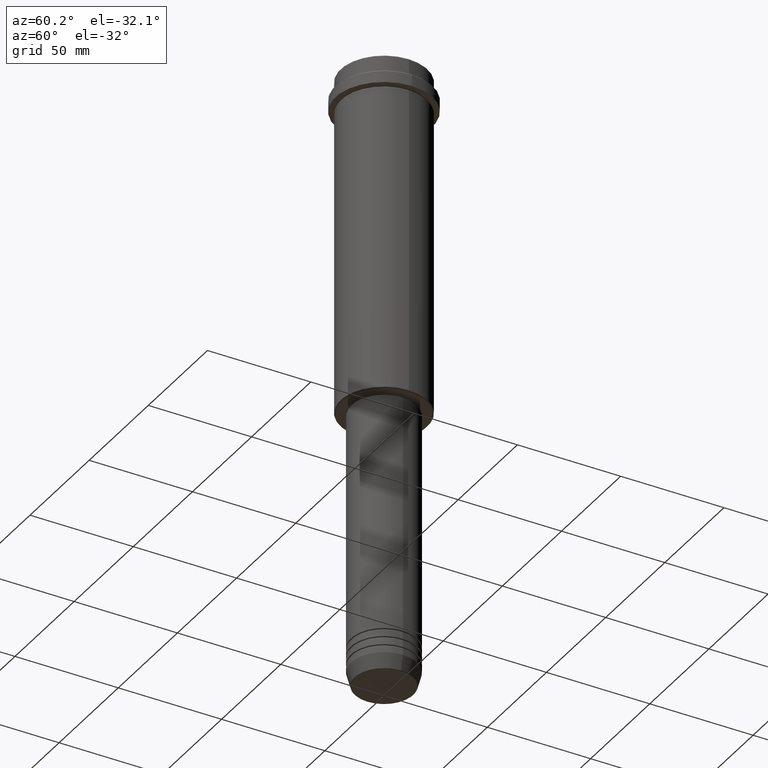
[diagram: clean part render]
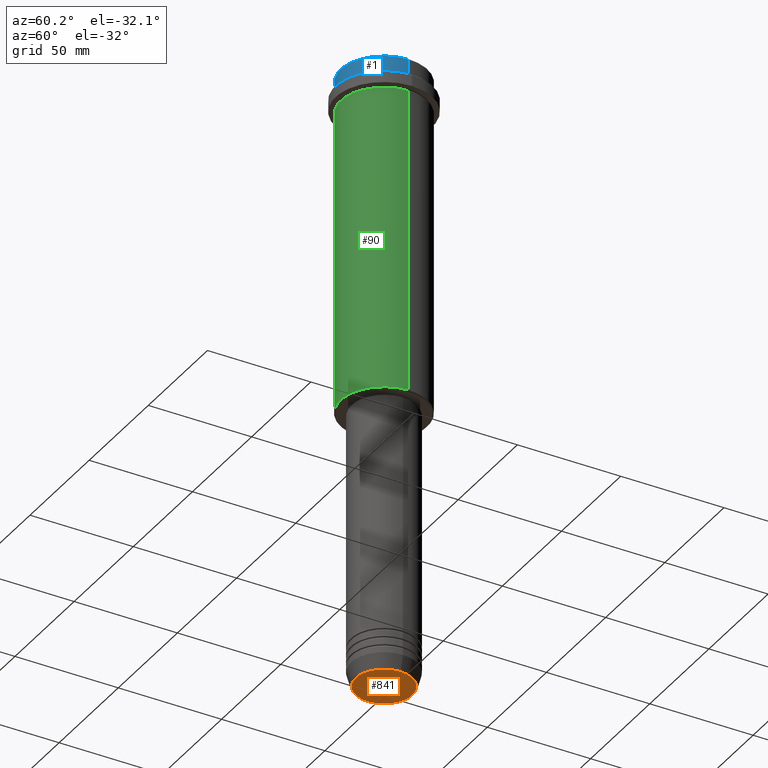
[diagram: same view with three faces highlighted in distinct colors, each labeled with its STEP entity id]
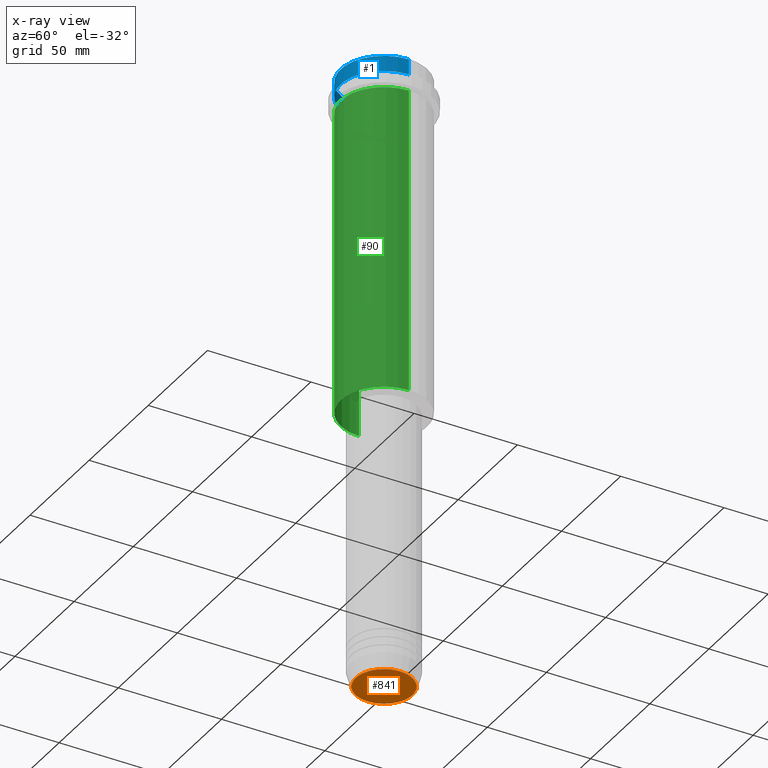
[diagram: x-ray of the same camera — body ghosted, the three highlighted faces saturated]
A machine part, auxiliary view with three faces highlighted in distinct colors.
The next image is the same camera in x-ray (body ghosted, the three faces saturated) — at least one of them is partly hidden behind the body in this view.
Their STEP definitions:

[orange] entity #841 — the highlighted planar face has unit normal (0, -0, 1).
#72 = VERTEX_POINT ( 'NONE', #1034 ) ;
#99 = CARTESIAN_POINT ( 'NONE',  ( -13.74069215899265828, 1.712322416342415986E-15, -300.0000000000000568 ) ) ;
#178 = CARTESIAN_POINT ( 'NONE',  ( 0.000000000000000000, 0.000000000000000000, -300.0000000000000568 ) ) ;
#287 = DIRECTION ( 'NONE',  ( 1.000000000000000000, 0.000000000000000000, 0.000000000000000000 ) ) ;
#388 = CARTESIAN_POINT ( 'NONE',  ( 0.000000000000000000, 0.000000000000000000, -300.0000000000000568 ) ) ;
#408 = EDGE_LOOP ( 'NONE', ( #669, #1095 ) ) ;
#503 = DIRECTION ( 'NONE',  ( 1.000000000000000000, 0.000000000000000000, 0.000000000000000000 ) ) ;
#518 = CIRCLE ( 'NONE', #1318, 13.74069215899265828 ) ;
#527 = DIRECTION ( 'NONE',  ( 0.000000000000000000, 0.000000000000000000, -1.000000000000000000 ) ) ;
#669 = ORIENTED_EDGE ( 'NONE', *, *, #1181, .T. ) ;
#681 = AXIS2_PLACEMENT_3D ( 'NONE', #178, #722, #1258 ) ;
#722 = DIRECTION ( 'NONE',  ( 0.000000000000000000, 0.000000000000000000, -1.000000000000000000 ) ) ;
#759 = CARTESIAN_POINT ( 'NONE',  ( 0.000000000000000000, 0.000000000000000000, -300.0000000000000568 ) ) ;
#841 = ADVANCED_FACE ( 'NONE', ( #1262 ), #1071, .F. ) ;
#1025 = CIRCLE ( 'NONE', #681, 13.74069215899265828 ) ;
#1034 = CARTESIAN_POINT ( 'NONE',  ( 13.74069215899265828, 0.000000000000000000, -300.0000000000000568 ) ) ;
#1071 = PLANE ( 'NONE',  #1209 ) ;
#1095 = ORIENTED_EDGE ( 'NONE', *, *, #1282, .T. ) ;
#1181 = EDGE_CURVE ( 'NONE', #72, #1355, #1025, .T. ) ;
#1209 = AXIS2_PLACEMENT_3D ( 'NONE', #388, #1286, #503 ) ;
#1258 = DIRECTION ( 'NONE',  ( 1.000000000000000000, 0.000000000000000000, 0.000000000000000000 ) ) ;
#1262 = FACE_OUTER_BOUND ( 'NONE', #408, .T. ) ;
#1282 = EDGE_CURVE ( 'NONE', #1355, #72, #518, .T. ) ;
#1286 = DIRECTION ( 'NONE',  ( 0.000000000000000000, -0.000000000000000000, 1.000000000000000000 ) ) ;
#1318 = AXIS2_PLACEMENT_3D ( 'NONE', #759, #527, #287 ) ;
#1355 = VERTEX_POINT ( 'NONE', #99 ) ;

[blue] entity #1 — the highlighted cylindrical surface (partial cylindrical patch) has radius 21 mm, axis along (-0, -0, 1).
#1 = ADVANCED_FACE ( 'NONE', ( #200 ), #777, .T. ) ;
#3 = LINE ( 'NONE', #413, #647 ) ;
#25 = DIRECTION ( 'NONE',  ( 1.000000000000000000, 0.000000000000000000, 0.000000000000000000 ) ) ;
#36 = VECTOR ( 'NONE', #1172, 1000.000000000000000 ) ;
#65 = CARTESIAN_POINT ( 'NONE',  ( 20.99999999999999645, 0.000000000000000000, -7.999999999999998224 ) ) ;
#76 = EDGE_CURVE ( 'NONE', #141, #904, #210, .T. ) ;
#94 = AXIS2_PLACEMENT_3D ( 'NONE', #1250, #1130, #25 ) ;
#117 = ORIENTED_EDGE ( 'NONE', *, *, #76, .T. ) ;
#141 = VERTEX_POINT ( 'NONE', #1125 ) ;
#200 = FACE_OUTER_BOUND ( 'NONE', #1144, .T. ) ;
#210 = CIRCLE ( 'NONE', #947, 20.99999999999999645 ) ;
#252 = CARTESIAN_POINT ( 'NONE',  ( -20.99999999999999645, 2.571758278209441267E-15, -7.999999999999998224 ) ) ;
#385 = EDGE_CURVE ( 'NONE', #1210, #141, #3, .T. ) ;
#394 = DIRECTION ( 'NONE',  ( 1.000000000000000000, 0.000000000000000000, 0.000000000000000000 ) ) ;
#413 = CARTESIAN_POINT ( 'NONE',  ( 20.99999999999999645, 0.000000000000000000, 0.000000000000000000 ) ) ;
#505 = CARTESIAN_POINT ( 'NONE',  ( -20.99999999999999645, 2.571758278209441267E-15, 0.000000000000000000 ) ) ;
#510 = EDGE_CURVE ( 'NONE', #1024, #1210, #1207, .T. ) ;
#611 = DIRECTION ( 'NONE',  ( 1.000000000000000000, 0.000000000000000000, 0.000000000000000000 ) ) ;
#647 = VECTOR ( 'NONE', #1191, 1000.000000000000000 ) ;
#710 = DIRECTION ( 'NONE',  ( -0.000000000000000000, -0.000000000000000000, 1.000000000000000000 ) ) ;
#725 = LINE ( 'NONE', #505, #36 ) ;
#777 = CYLINDRICAL_SURFACE ( 'NONE', #94, 20.99999999999999645 ) ;
#803 = CARTESIAN_POINT ( 'NONE',  ( -20.99999999999999645, 2.571758278209441267E-15, -0.5000000000000073275 ) ) ;
#808 = ORIENTED_EDGE ( 'NONE', *, *, #385, .T. ) ;
#818 = EDGE_CURVE ( 'NONE', #1024, #904, #725, .T. ) ;
#828 = DIRECTION ( 'NONE',  ( 0.000000000000000000, 0.000000000000000000, -1.000000000000000000 ) ) ;
#904 = VERTEX_POINT ( 'NONE', #803 ) ;
#947 = AXIS2_PLACEMENT_3D ( 'NONE', #1358, #828, #394 ) ;
#986 = ORIENTED_EDGE ( 'NONE', *, *, #818, .F. ) ;
#1024 = VERTEX_POINT ( 'NONE', #252 ) ;
#1083 = ORIENTED_EDGE ( 'NONE', *, *, #510, .T. ) ;
#1111 = AXIS2_PLACEMENT_3D ( 'NONE', #1388, #710, #611 ) ;
#1125 = CARTESIAN_POINT ( 'NONE',  ( 20.99999999999999645, 0.000000000000000000, -0.5000000000000073275 ) ) ;
#1130 = DIRECTION ( 'NONE',  ( -0.000000000000000000, -0.000000000000000000, 1.000000000000000000 ) ) ;
#1144 = EDGE_LOOP ( 'NONE', ( #986, #1083, #808, #117 ) ) ;
#1172 = DIRECTION ( 'NONE',  ( -0.000000000000000000, -0.000000000000000000, 1.000000000000000000 ) ) ;
#1191 = DIRECTION ( 'NONE',  ( -0.000000000000000000, -0.000000000000000000, 1.000000000000000000 ) ) ;
#1207 = CIRCLE ( 'NONE', #1111, 20.99999999999999645 ) ;
#1210 = VERTEX_POINT ( 'NONE', #65 ) ;
#1250 = CARTESIAN_POINT ( 'NONE',  ( 0.000000000000000000, 0.000000000000000000, 0.000000000000000000 ) ) ;
#1358 = CARTESIAN_POINT ( 'NONE',  ( 0.000000000000000000, 0.000000000000000000, -0.5000000000000073275 ) ) ;
#1388 = CARTESIAN_POINT ( 'NONE',  ( 0.000000000000000000, 0.000000000000000000, -7.999999999999998224 ) ) ;

[green] entity #90 — the highlighted cylindrical surface (partial cylindrical patch) has radius 21 mm, axis along (-0, -0, 1).
#2 = VERTEX_POINT ( 'NONE', #479 ) ;
#23 = CARTESIAN_POINT ( 'NONE',  ( 0.000000000000000000, 0.000000000000000000, -16.00000000000000355 ) ) ;
#59 = CARTESIAN_POINT ( 'NONE',  ( -20.99999999999999645, 2.571758278209441267E-15, 0.000000000000000000 ) ) ;
#89 = DIRECTION ( 'NONE',  ( -0.000000000000000000, -0.000000000000000000, 1.000000000000000000 ) ) ;
#90 = ADVANCED_FACE ( 'NONE', ( #835 ), #1078, .T. ) ;
#103 = CARTESIAN_POINT ( 'NONE',  ( -20.99999999999999645, 2.571758278209441267E-15, -164.4999999999999716 ) ) ;
#110 = ORIENTED_EDGE ( 'NONE', *, *, #620, .T. ) ;
#124 = CIRCLE ( 'NONE', #739, 20.99999999999999645 ) ;
#244 = CARTESIAN_POINT ( 'NONE',  ( 0.000000000000000000, 0.000000000000000000, -164.4999999999999716 ) ) ;
#253 = DIRECTION ( 'NONE',  ( -0.000000000000000000, -0.000000000000000000, 1.000000000000000000 ) ) ;
#262 = EDGE_CURVE ( 'NONE', #926, #1195, #124, .T. ) ;
#289 = LINE ( 'NONE', #59, #355 ) ;
#292 = CARTESIAN_POINT ( 'NONE',  ( 20.99999999999999645, 0.000000000000000000, 0.000000000000000000 ) ) ;
#295 = DIRECTION ( 'NONE',  ( 1.000000000000000000, 0.000000000000000000, 0.000000000000000000 ) ) ;
#312 = ORIENTED_EDGE ( 'NONE', *, *, #262, .T. ) ;
#322 = EDGE_CURVE ( 'NONE', #746, #2, #1062, .T. ) ;
#353 = DIRECTION ( 'NONE',  ( 1.000000000000000000, 0.000000000000000000, 0.000000000000000000 ) ) ;
#355 = VECTOR ( 'NONE', #1060, 1000.000000000000000 ) ;
#371 = CARTESIAN_POINT ( 'NONE',  ( -20.99999999999999645, 2.571758278209441267E-15, -16.00000000000000355 ) ) ;
#461 = DIRECTION ( 'NONE',  ( -0.000000000000000000, -0.000000000000000000, 1.000000000000000000 ) ) ;
#477 = ORIENTED_EDGE ( 'NONE', *, *, #776, .F. ) ;
#479 = CARTESIAN_POINT ( 'NONE',  ( 20.99999999999999645, 0.000000000000000000, -16.00000000000000355 ) ) ;
#508 = EDGE_LOOP ( 'NONE', ( #477, #312, #110, #1123 ) ) ;
#604 = AXIS2_PLACEMENT_3D ( 'NONE', #1281, #89, #295 ) ;
#613 = DIRECTION ( 'NONE',  ( -0.000000000000000000, -0.000000000000000000, 1.000000000000000000 ) ) ;
#620 = EDGE_CURVE ( 'NONE', #1195, #2, #1177, .T. ) ;
#739 = AXIS2_PLACEMENT_3D ( 'NONE', #244, #253, #1137 ) ;
#746 = VERTEX_POINT ( 'NONE', #371 ) ;
#776 = EDGE_CURVE ( 'NONE', #926, #746, #289, .T. ) ;
#834 = VECTOR ( 'NONE', #613, 1000.000000000000000 ) ;
#835 = FACE_OUTER_BOUND ( 'NONE', #508, .T. ) ;
#919 = CARTESIAN_POINT ( 'NONE',  ( 20.99999999999999645, 0.000000000000000000, -164.4999999999999716 ) ) ;
#926 = VERTEX_POINT ( 'NONE', #103 ) ;
#1060 = DIRECTION ( 'NONE',  ( -0.000000000000000000, -0.000000000000000000, 1.000000000000000000 ) ) ;
#1062 = CIRCLE ( 'NONE', #1204, 20.99999999999999645 ) ;
#1078 = CYLINDRICAL_SURFACE ( 'NONE', #604, 20.99999999999999645 ) ;
#1123 = ORIENTED_EDGE ( 'NONE', *, *, #322, .F. ) ;
#1137 = DIRECTION ( 'NONE',  ( -1.000000000000000000, 0.000000000000000000, 0.000000000000000000 ) ) ;
#1177 = LINE ( 'NONE', #292, #834 ) ;
#1195 = VERTEX_POINT ( 'NONE', #919 ) ;
#1204 = AXIS2_PLACEMENT_3D ( 'NONE', #23, #461, #353 ) ;
#1281 = CARTESIAN_POINT ( 'NONE',  ( 0.000000000000000000, 0.000000000000000000, 0.000000000000000000 ) ) ;